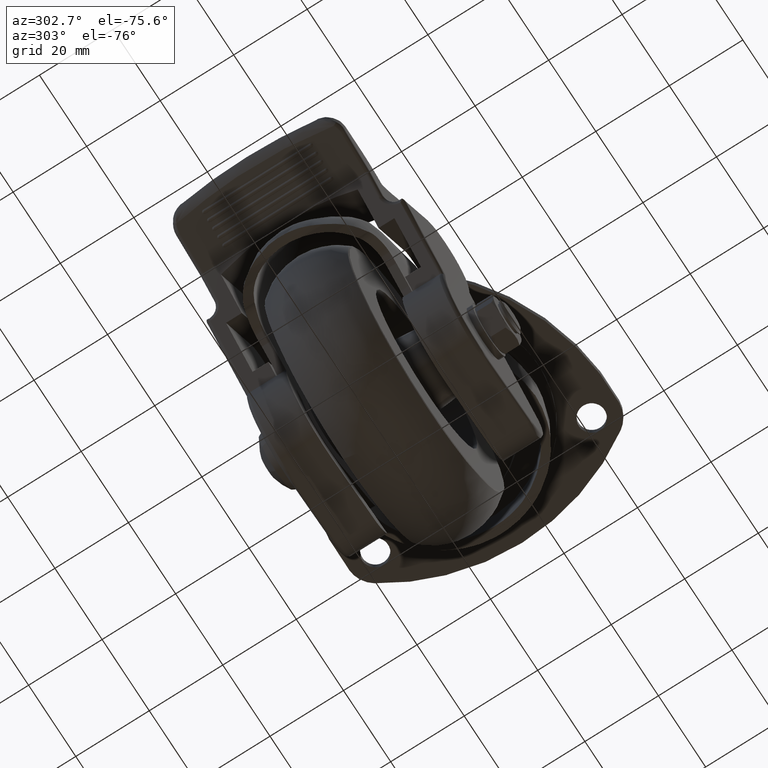
[diagram: clean part render]
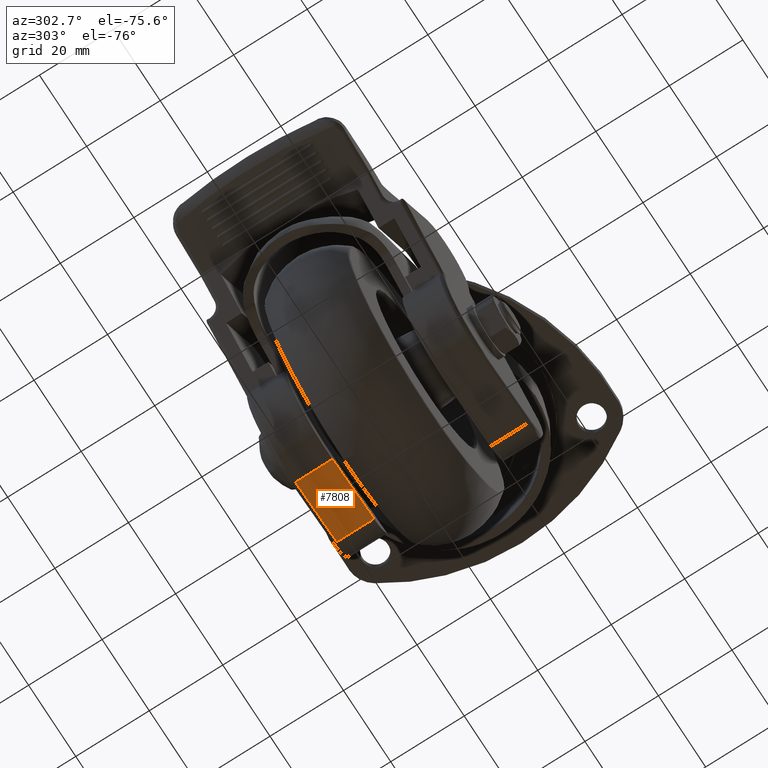
[diagram: same view with one face highlighted and labeled with its STEP entity id]
A machine part, auxiliary view. The second image highlights one B-rep face of the part: STEP entity #7808.
In plain terms, the highlighted face is a freeform B-spline surface patch.
Its self-contained STEP definition (entity closure, byte-faithful):
#2998=CARTESIAN_POINT('',(-22.340613999999999,25.899999999999999,-74.290701953096701));
#2999=VERTEX_POINT('',#2998);
#3049=CARTESIAN_POINT('',(-4.781317744718479,25.899999999999999,-71.509582337262600));
#3050=VERTEX_POINT('',#3049);
#3064=CARTESIAN_POINT('',(-22.340613999999999,25.899999999999999,-74.290701953096701));
#3065=CARTESIAN_POINT('',(-4.781317744718479,25.899999999999999,-71.509582337262600));
#3066=QUASI_UNIFORM_CURVE('',1,(#3064,#3065),.UNSPECIFIED.,.F.,.U.);
#3067=EDGE_CURVE('',#2999,#3050,#3066,.T.);
#7576=CARTESIAN_POINT('',(-22.340613815417051,15.800000000000001,-74.290701699040696));
#7577=VERTEX_POINT('',#7576);
#7593=CARTESIAN_POINT('',(-4.781317744718479,15.800000000000001,-71.509582912663987));
#7594=VERTEX_POINT('',#7593);
#7595=CARTESIAN_POINT('',(-22.340613815417051,15.800000000000001,-74.290701699040696));
#7596=CARTESIAN_POINT('',(-4.781317744718479,15.800000000000001,-71.509582912663987));
#7597=QUASI_UNIFORM_CURVE('',1,(#7595,#7596),.UNSPECIFIED.,.F.,.U.);
#7598=EDGE_CURVE('',#7577,#7594,#7597,.T.);
#7767=CARTESIAN_POINT('',(-22.340613999999999,25.899999999999999,-74.290701953096701));
#7768=CARTESIAN_POINT('',(-22.340613815417051,15.800000000000001,-74.290701699040696));
#7769=QUASI_UNIFORM_CURVE('',1,(#7767,#7768),.UNSPECIFIED.,.F.,.U.);
#7770=EDGE_CURVE('',#2999,#7577,#7769,.T.);
#7793=CARTESIAN_POINT('',(-23.217701312861081,15.295505245283200,-74.429618922800870));
#7794=CARTESIAN_POINT('',(-3.904230342952980,15.295505245283200,-71.370665928878907));
#7795=CARTESIAN_POINT('',(-23.217701312861081,26.404494483813689,-74.429618922800870));
#7796=CARTESIAN_POINT('',(-3.904230342952980,26.404494483813689,-71.370665928878907));
#7797=B_SPLINE_SURFACE_WITH_KNOTS('',1,1,((#7793,#7795),(#7794,#7796)),.UNSPECIFIED.,.F.,.F.,.U.,(2,2),(2,2),(0.0,19.554215768588289),(0.0,11.108989238530491),.UNSPECIFIED.);
#7798=ORIENTED_EDGE('',*,*,#7770,.F.);
#7799=ORIENTED_EDGE('',*,*,#3067,.T.);
#7800=CARTESIAN_POINT('',(-4.781317744718479,25.899999999999999,-71.509582337262600));
#7801=CARTESIAN_POINT('',(-4.781317744718479,15.800000000000001,-71.509582912663987));
#7802=QUASI_UNIFORM_CURVE('',1,(#7800,#7801),.UNSPECIFIED.,.F.,.U.);
#7803=EDGE_CURVE('',#3050,#7594,#7802,.T.);
#7804=ORIENTED_EDGE('',*,*,#7803,.T.);
#7805=ORIENTED_EDGE('',*,*,#7598,.F.);
#7806=EDGE_LOOP('',(#7798,#7799,#7804,#7805));
#7807=FACE_OUTER_BOUND('',#7806,.T.);
#7808=ADVANCED_FACE('',(#7807),#7797,.F.);